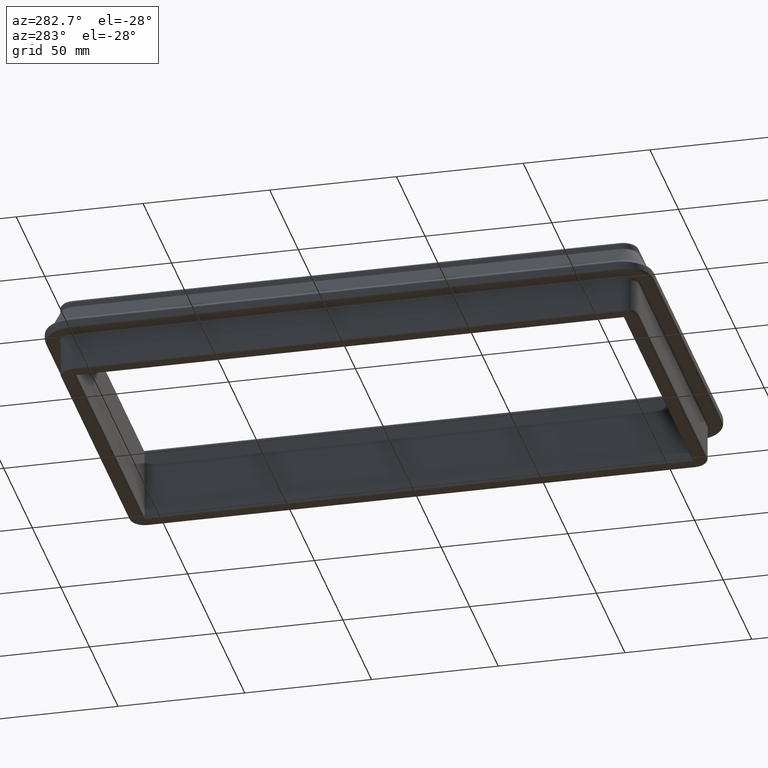
[diagram: clean part render]
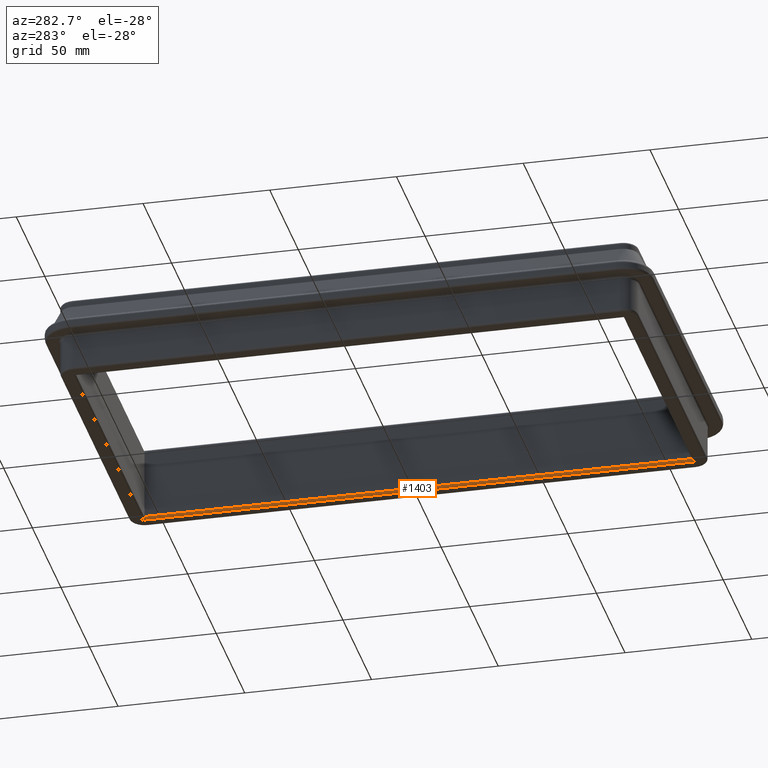
[diagram: same view with one face highlighted and labeled with its STEP entity id]
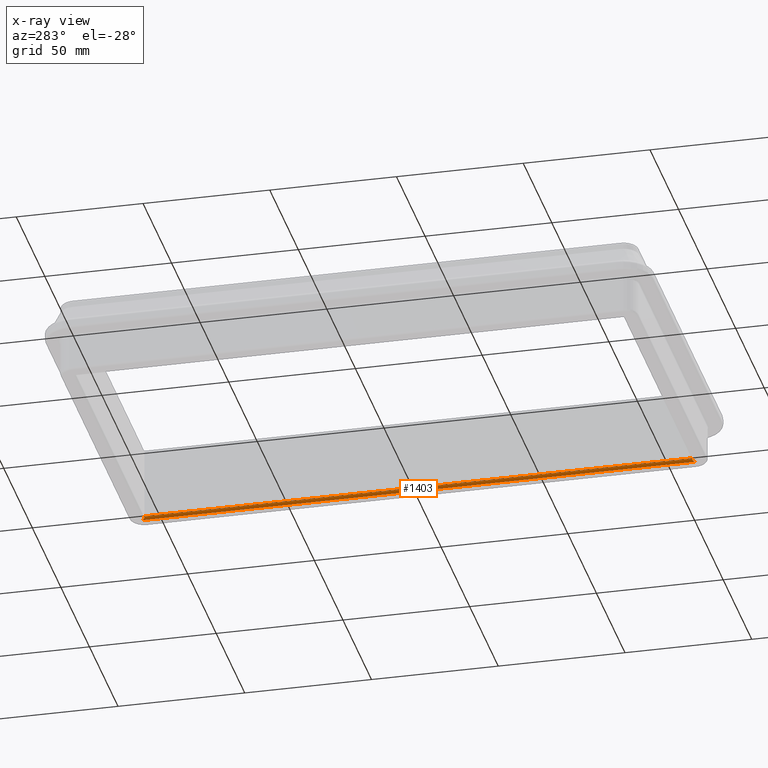
[diagram: x-ray of the same camera — body ghosted, the highlighted face saturated]
A machine part, auxiliary view. The second image highlights one B-rep face of the part: STEP entity #1403.
The next image is the same camera in x-ray: the body ghosted, the highlighted face saturated — about 0% of this face is hidden behind the body in this view.
In plain terms, the highlighted cylindrical surface (edge-blend (fillet) strip) has radius 1 mm, axis along (0, -1, 0).
Its self-contained STEP definition (entity closure, byte-faithful):
#21=ELLIPSE('',#1605,1.41421356237308,1.);
#22=ELLIPSE('',#1607,1.41421356237303,1.);
#146=FACE_OUTER_BOUND('',#243,.T.);
#243=EDGE_LOOP('',(#1178,#1179,#1180,#1181));
#349=LINE('',#2485,#449);
#350=LINE('',#2487,#450);
#449=VECTOR('',#2045,10.);
#450=VECTOR('',#2046,10.);
#659=VERTEX_POINT('',#2466);
#663=VERTEX_POINT('',#2480);
#664=VERTEX_POINT('',#2484);
#665=VERTEX_POINT('',#2486);
#844=EDGE_CURVE('',#663,#659,#21,.T.);
#845=EDGE_CURVE('',#664,#659,#349,.T.);
#846=EDGE_CURVE('',#663,#665,#350,.T.);
#847=EDGE_CURVE('',#665,#664,#22,.T.);
#1178=ORIENTED_EDGE('',*,*,#845,.T.);
#1179=ORIENTED_EDGE('',*,*,#844,.F.);
#1180=ORIENTED_EDGE('',*,*,#846,.T.);
#1181=ORIENTED_EDGE('',*,*,#847,.T.);
#1323=CYLINDRICAL_SURFACE('',#1606,1.);
#1403=ADVANCED_FACE('',(#146),#1323,.T.);
#1605=AXIS2_PLACEMENT_3D('',#2482,#2041,#2042);
#1606=AXIS2_PLACEMENT_3D('',#2483,#2043,#2044);
#1607=AXIS2_PLACEMENT_3D('',#2488,#2047,#2048);
#2041=DIRECTION('center_axis',(-0.707106781186554,0.707106781186541,6.28036983473515E-15));
#2042=DIRECTION('ref_axis',(-0.707106781186541,-0.707106781186554,-6.28036983473526E-15));
#2043=DIRECTION('center_axis',(1.64477485129653E-16,-1.,0.));
#2044=DIRECTION('ref_axis',(-0.707106781186546,0.,-0.707106781186549));
#2045=DIRECTION('',(-1.64477485129653E-16,1.,0.));
#2046=DIRECTION('',(1.64477485129653E-16,-1.,0.));
#2047=DIRECTION('center_axis',(0.707106781186516,0.707106781186579,6.28036983473482E-15));
#2048=DIRECTION('ref_axis',(-0.707106781186579,0.707106781186516,-6.28036983473537E-15));
#2466=CARTESIAN_POINT('',(60.,108.,-14.));
#2480=CARTESIAN_POINT('',(60.9999999999999,109.,-15.));
#2482=CARTESIAN_POINT('Origin',(60.9999999999999,109.,-14.));
#2483=CARTESIAN_POINT('Origin',(60.9999999999999,108.,-14.));
#2484=CARTESIAN_POINT('',(60.,-108.,-14.));
#2485=CARTESIAN_POINT('',(59.9999999999999,108.,-14.));
#2486=CARTESIAN_POINT('',(61.,-109.,-15.));
#2487=CARTESIAN_POINT('',(60.9999999999999,108.,-15.));
#2488=CARTESIAN_POINT('Origin',(61.,-109.,-14.));